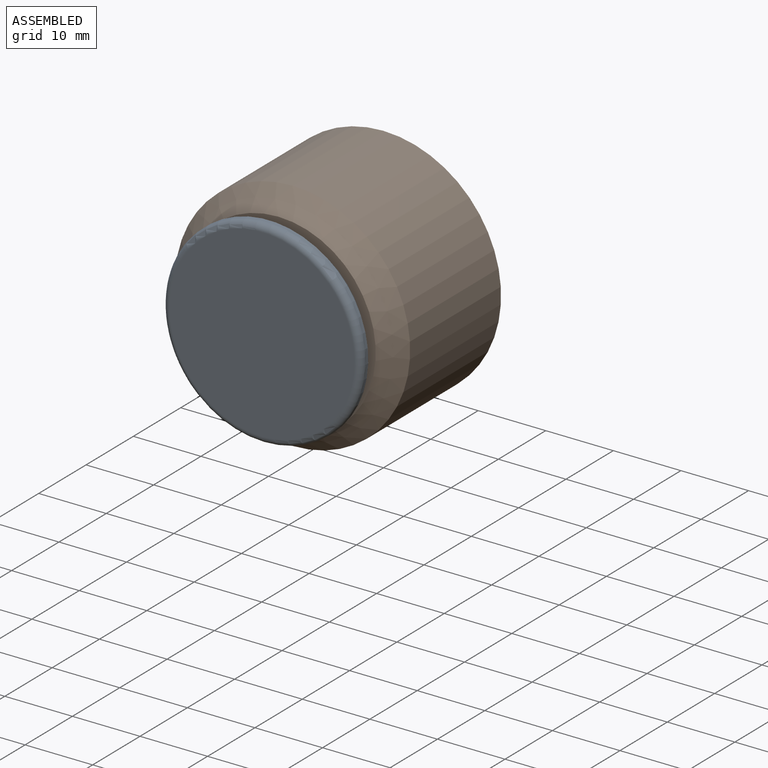
[diagram: assembled view]
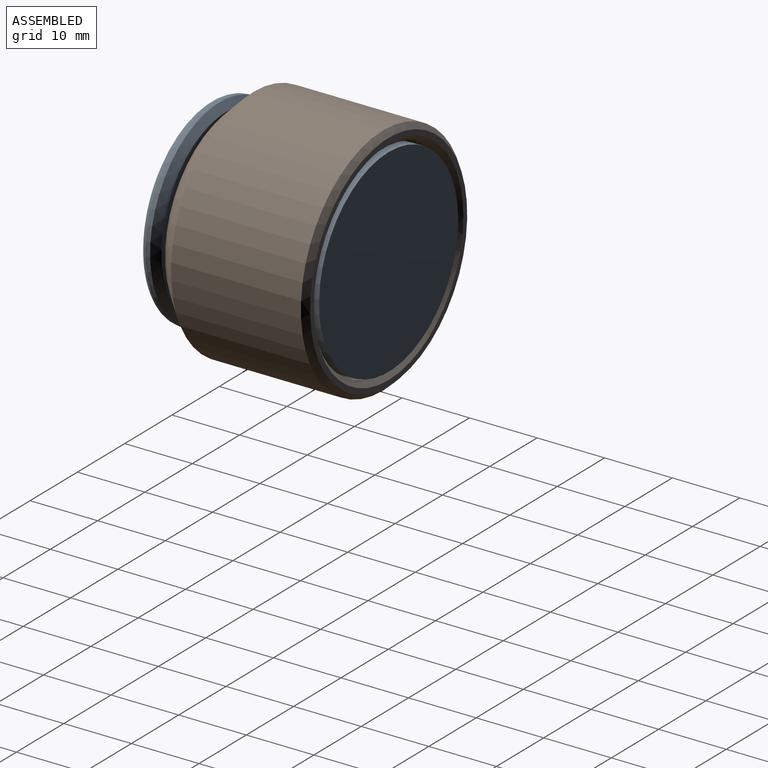
[diagram: assembled view, second angle]
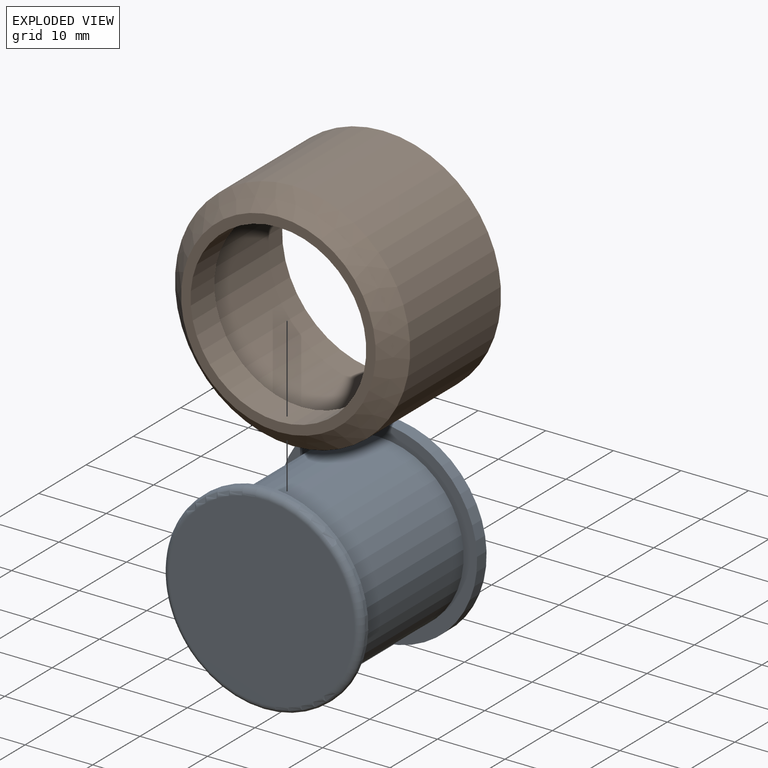
[diagram: exploded view]
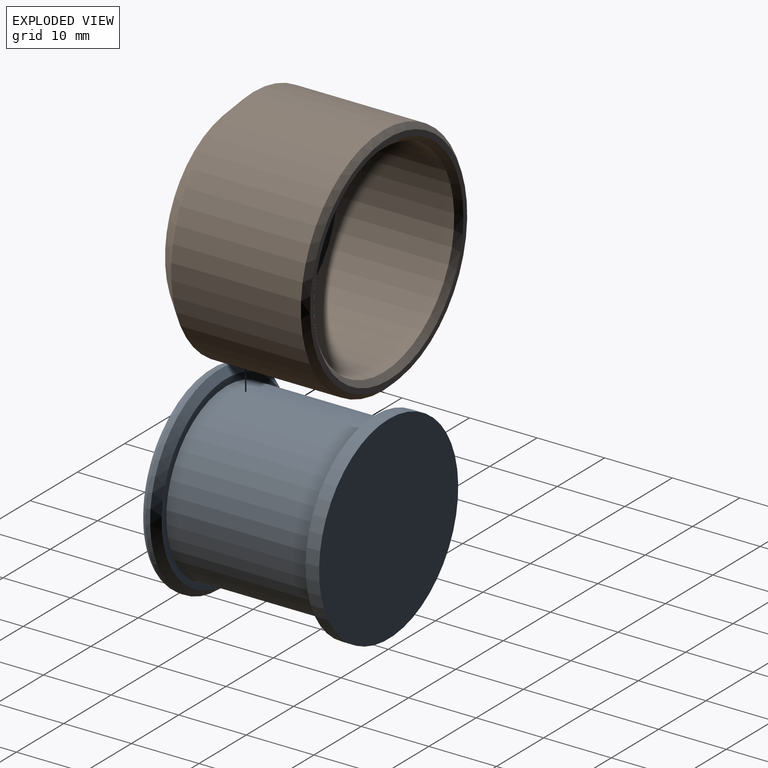
[diagram: exploded view, second angle]
ASSEMBLY  parts=2 mates=2
PART A: 9 faces, bbox 31.8x26.5x31.8 mm
  f0: cylinder r=14.7mm len=29.4mm, axis (0,-1,0), area 184.7mm2, adj f1,f2
  f1: plane 29.4x29.4mm, normal (0,1,0), area 678.9mm2, adj f0
  f2: plane 29.4x29.4mm, normal (0,-1,0), area 172.2mm2, adj f0,f3
  f3: cylinder r=12.7mm len=25.4mm, axis (0,1,0), area 1755.5mm2, adj f2,f6
  f4: cylinder r=14.7mm len=29.4mm, axis (0,1,0), area 46.2mm2, adj f7,f8
  f5: plane 27.4x27.4mm, normal (0,-1,0), area 589.6mm2, adj f8
  f6: plane 27.4x27.4mm, normal (0,1,0), area 82.9mm2, adj f3,f7
  f7: cone r=14.7mm half-angle=45deg, axis (0,-1,0), area 126.2mm2, adj f4,f6
  f8: torus R=13.7mm, axis (0,-1,0), area 141.5mm2, adj f4,f5
PART B: 9 faces, bbox 34.8x23x34.8 mm
  f0: cylinder r=15mm len=30mm, axis (0,1,0), area 1621.1mm2, adj f3,f7
  f1: cylinder r=17.4mm len=34.8mm, axis (0,1,0), area 2099.1mm2, adj f6,f8
  f2: plane 33.2x33.2mm, normal (0,1,0), area 81.4mm2, adj f7,f8
  f3: plane 30x30mm, normal (0,1,0), area 175.9mm2, adj f0,f4
  f4: cylinder r=13mm len=26mm, axis (0,1,0), area 408.4mm2, adj f3,f5
  f5: plane 28.8x28.8mm, normal (0,-1,0), area 120.5mm2, adj f4,f6
  f6: cone r=14.4mm half-angle=45deg, axis (0,1,0), area 423.9mm2, adj f1,f5
  f7: cone r=15.8mm half-angle=45deg, axis (0,1,0), area 109.5mm2, adj f0,f2
  f8: cone r=17.4mm half-angle=45deg, axis (0,-1,0), area 120.8mm2, adj f1,f2
PLACE A t=(-0.99,25.37,-2.34)mm
PLACE B t=(-0.99,9.37,-2.34)mm
MATE slider A.f3 <-> B.f0  axis (0,1,0) through (-0.99,-3.63,-2.34)mm
MATE planar A.f0 <-> B.f4  axis (0,1,0) through (-0.99,9.37,-2.34)mm
